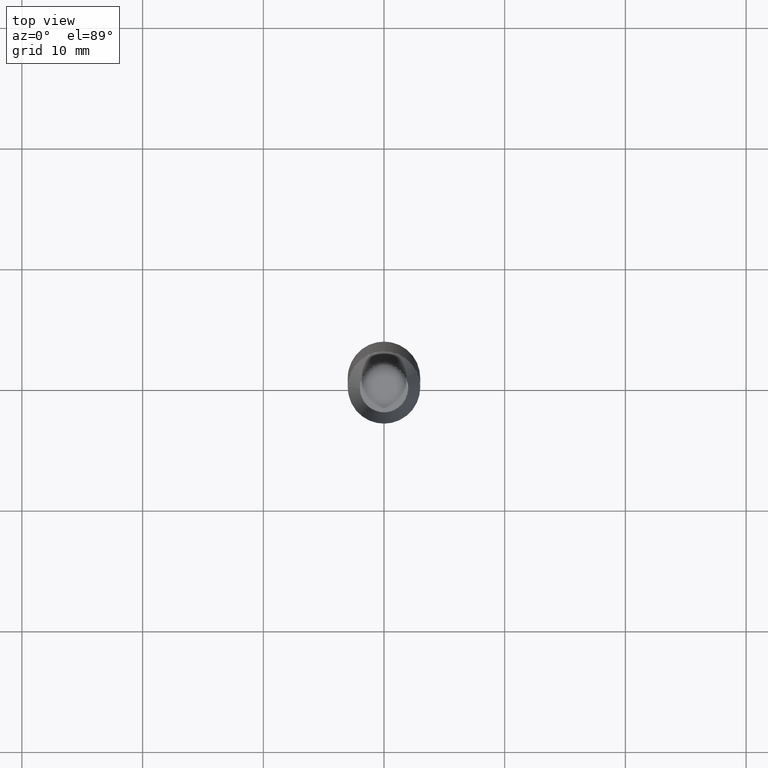
[diagram: clean part render]
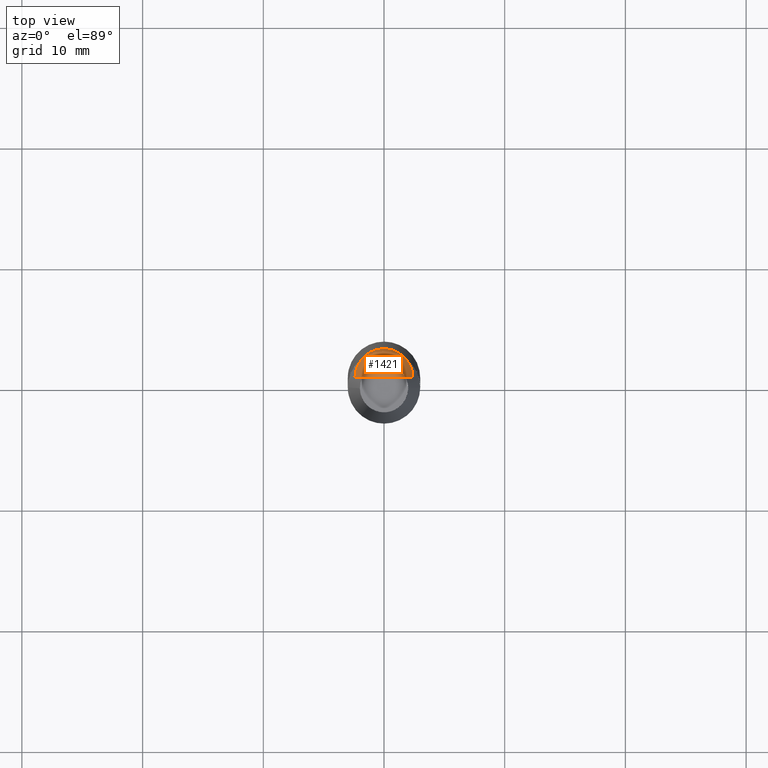
[diagram: same view with one face highlighted and labeled with its STEP entity id]
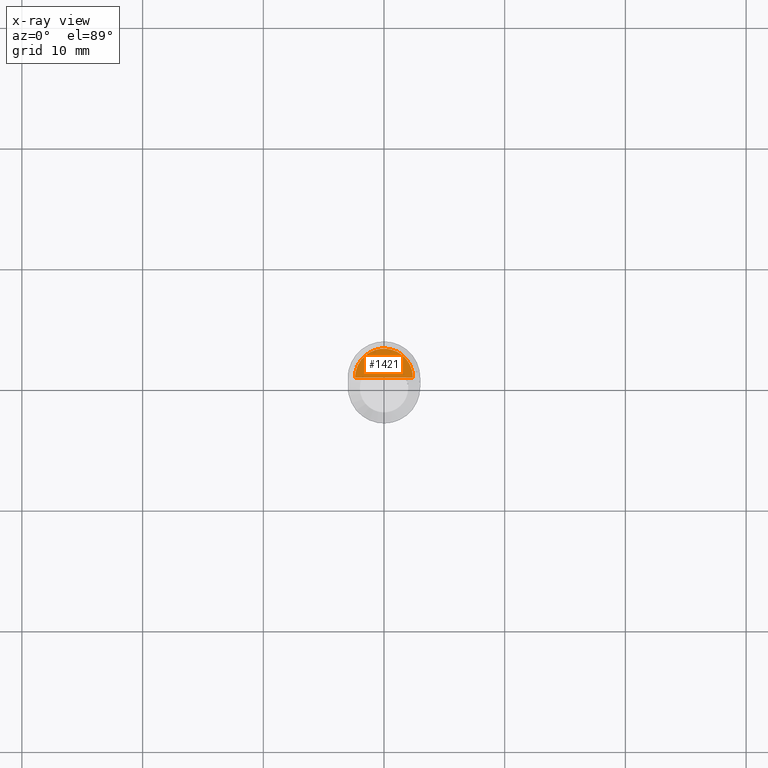
[diagram: x-ray of the same camera — body ghosted, the highlighted face saturated]
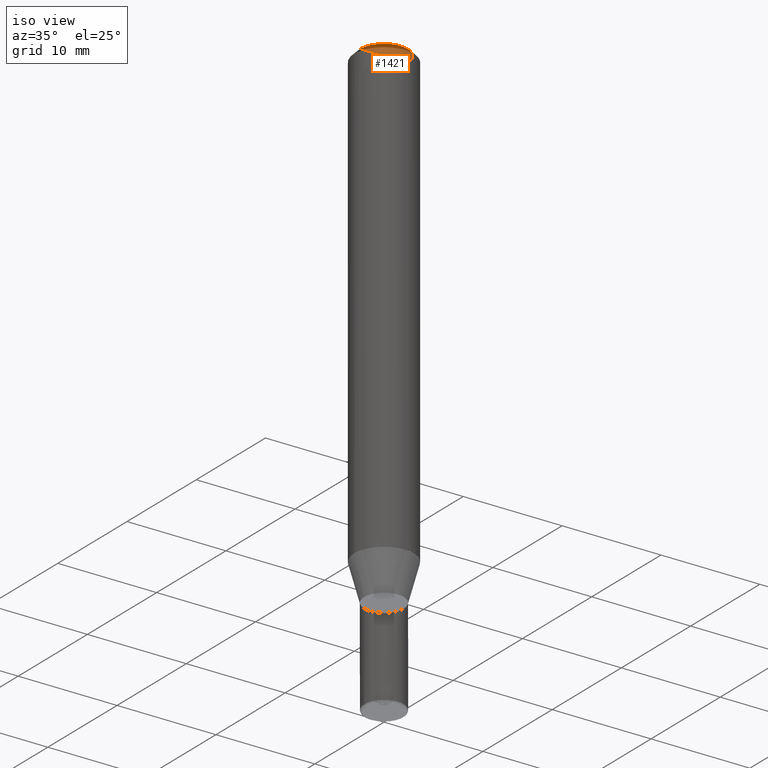
[diagram: same view with one face highlighted and labeled with its STEP entity id]
A machine part, top view. The second image highlights one B-rep face of the part: STEP entity #1421.
The next image is the same camera in x-ray: the body ghosted, the highlighted face saturated — about 0% of this face is hidden behind the body in this view.
A second angle (iso view) of the same face is appended — the face is thin or edge-on in the first view.
In plain terms, the highlighted face is a freeform B-spline surface patch.
Its self-contained STEP definition (entity closure, byte-faithful):
#1158=CARTESIAN_POINT('',(2.4,0.0,46.267949192431));
#1159=CARTESIAN_POINT('',(2.4,2.4,46.267949192431));
#1160=CARTESIAN_POINT('',(0.0,2.4,46.267949192431));
#1161=CARTESIAN_POINT('',(-2.4,2.4,46.267949192431));
#1162=CARTESIAN_POINT('',(-2.4,0.0,46.267949192431));
#1163=CARTESIAN_POINT('',(0.0,0.0,46.267949192431));
#1406=(
BOUNDED_SURFACE()
B_SPLINE_SURFACE(1,2,(
(#1158,#1159,#1160,#1161,#1162),
(#1163,#1163,#1163,#1163,#1163)
), .UNSPECIFIED.,.F.,.F.,.F.)
B_SPLINE_SURFACE_WITH_KNOTS((2,2),(3,2,3),(
0.0,1.0),(
0.0,0.5,1.0), .UNSPECIFIED.)
GEOMETRIC_REPRESENTATION_ITEM()
RATIONAL_B_SPLINE_SURFACE(((1.0,0.707106781187,1.0,0.707106781187,1.0),
(1.0,0.707106781187,1.0,0.707106781187,1.0)
))
REPRESENTATION_ITEM('')
SURFACE()
);
#1407=(
BOUNDED_CURVE()
B_SPLINE_CURVE(1,(#1163,#1158),.UNSPECIFIED.,.F.,.F.)
B_SPLINE_CURVE_WITH_KNOTS((2,2),
(0.0,1.0),.UNSPECIFIED.)
CURVE()
GEOMETRIC_REPRESENTATION_ITEM()
RATIONAL_B_SPLINE_CURVE((1.0,1.0))
REPRESENTATION_ITEM('')
);
#1408=(
BOUNDED_CURVE()
B_SPLINE_CURVE(2,(#1158,#1159,#1160,#1161,#1162),.UNSPECIFIED.,.F.,.F.)
B_SPLINE_CURVE_WITH_KNOTS((3,2,3),
(0.0,0.5,1.0),.UNSPECIFIED.)
CURVE()
GEOMETRIC_REPRESENTATION_ITEM()
RATIONAL_B_SPLINE_CURVE((1.0,0.707106781187,1.0,0.707106781187,1.0))
REPRESENTATION_ITEM('')
);
#1409=(
BOUNDED_CURVE()
B_SPLINE_CURVE(1,(#1162,#1163),.UNSPECIFIED.,.F.,.F.)
B_SPLINE_CURVE_WITH_KNOTS((2,2),
(0.0,1.0),.UNSPECIFIED.)
CURVE()
GEOMETRIC_REPRESENTATION_ITEM()
RATIONAL_B_SPLINE_CURVE((1.0,1.0))
REPRESENTATION_ITEM('')
);
#1410=VERTEX_POINT('',#1158);
#1411=VERTEX_POINT('',#1162);
#1412=VERTEX_POINT('',#1163);
#1413=EDGE_CURVE('',#1412,#1410,#1407,.T.);
#1414=EDGE_CURVE('',#1410,#1411,#1408,.T.);
#1415=EDGE_CURVE('',#1411,#1412,#1409,.T.);
#1416=ORIENTED_EDGE('',*,*,#1413,.T.);
#1417=ORIENTED_EDGE('',*,*,#1414,.T.);
#1418=ORIENTED_EDGE('',*,*,#1415,.T.);
#1419=EDGE_LOOP('',(#1416,#1417,#1418));
#1420=FACE_OUTER_BOUND('',#1419,.T.);
#1421=ADVANCED_FACE('',(#1420),#1406,.T.);